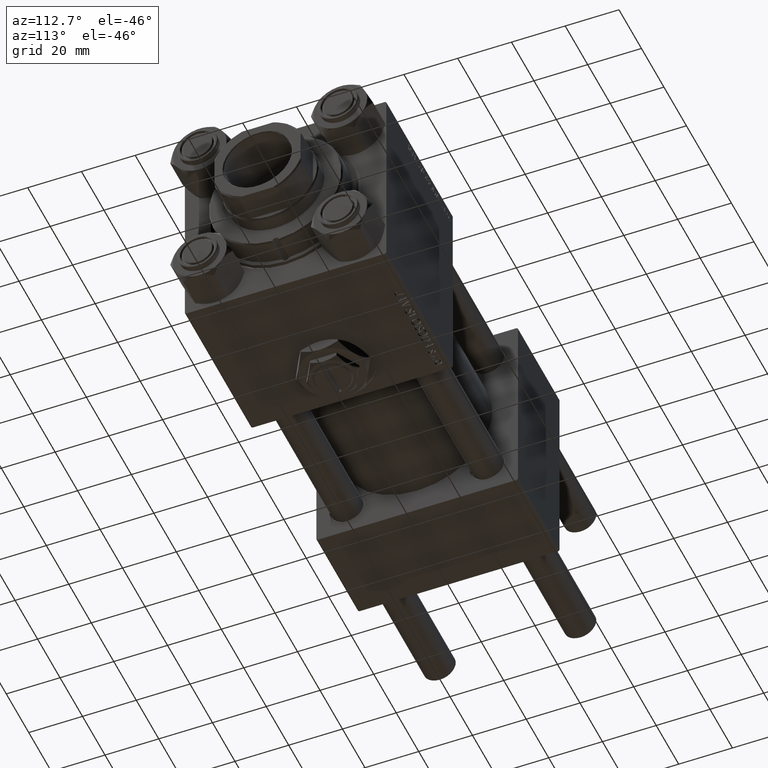
[diagram: clean part render]
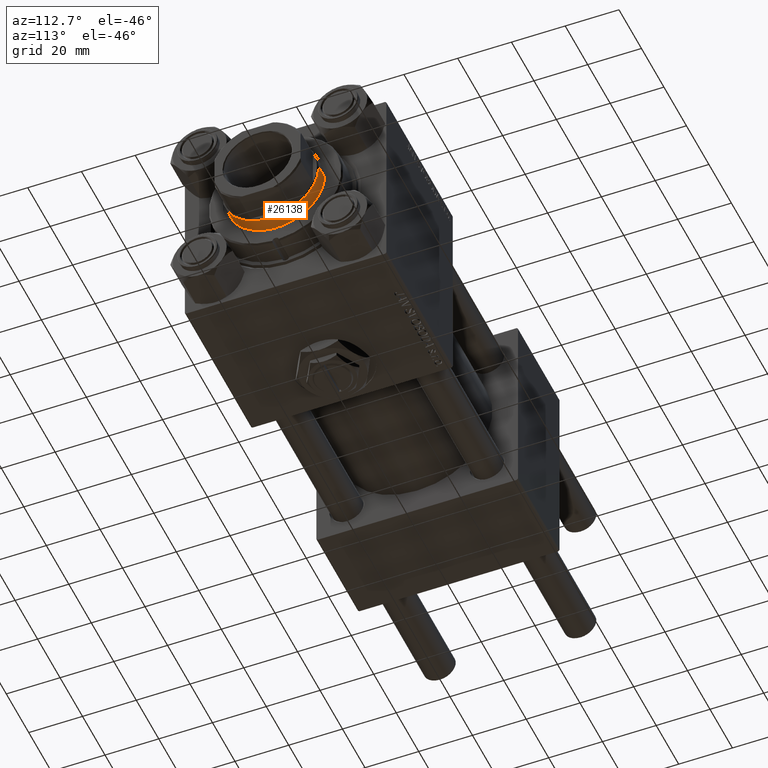
[diagram: same view with one face highlighted and labeled with its STEP entity id]
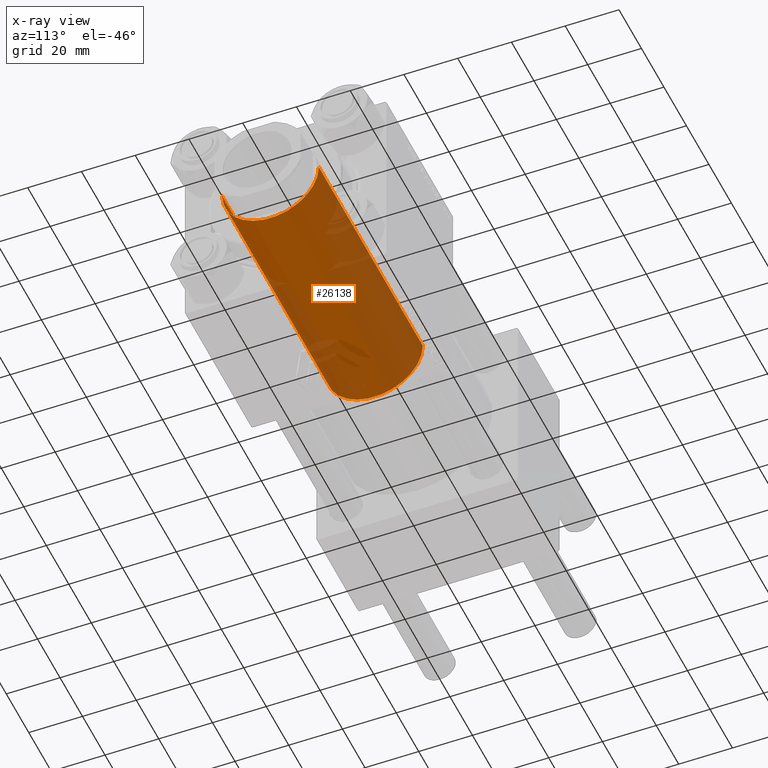
[diagram: x-ray of the same camera — body ghosted, the highlighted face saturated]
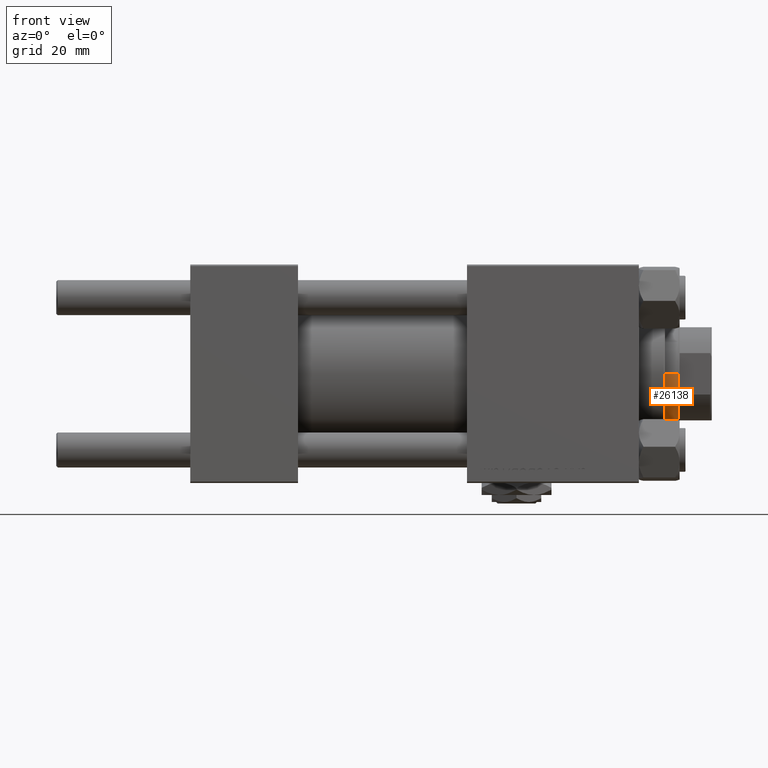
[diagram: same view with one face highlighted and labeled with its STEP entity id]
A machine part, auxiliary view. The second image highlights one B-rep face of the part: STEP entity #26138.
The next image is the same camera in x-ray: the body ghosted, the highlighted face saturated — about 54% of this face is hidden behind the body in this view.
A second angle (front view) of the same face is appended — the face is thin or edge-on in the first view.
In plain terms, the highlighted cylindrical surface (partial cylindrical patch) has radius 18 mm, axis along (-1, 0, 0).
Its self-contained STEP definition (entity closure, byte-faithful):
#2767 = CARTESIAN_POINT ( 'NONE',  ( 0.000000000000000000, 0.000000000000000000, 38.00000000000000000 ) ) ;
#3090 = LINE ( 'NONE', #7007, #33055 ) ;
#3495 = EDGE_LOOP ( 'NONE', ( #11753, #46958, #29587, #3926 ) ) ;
#3859 = DIRECTION ( 'NONE',  ( -1.000000000000000000, 0.000000000000000000, 0.000000000000000000 ) ) ;
#3926 = ORIENTED_EDGE ( 'NONE', *, *, #42815, .F. ) ;
#7007 = CARTESIAN_POINT ( 'NONE',  ( 18.00000000000000000, 2.204364238465235033E-15, 131.0000000000000000 ) ) ;
#7660 = DIRECTION ( 'NONE',  ( 1.000000000000000000, 0.000000000000000000, 0.000000000000000000 ) ) ;
#9568 = EDGE_CURVE ( 'NONE', #23638, #47143, #39350, .T. ) ;
#11753 = ORIENTED_EDGE ( 'NONE', *, *, #9568, .T. ) ;
#12721 = VECTOR ( 'NONE', #44321, 1000.000000000000000 ) ;
#16649 = EDGE_CURVE ( 'NONE', #29852, #22071, #51281, .T. ) ;
#18704 = DIRECTION ( 'NONE',  ( 0.000000000000000000, 0.000000000000000000, 1.000000000000000000 ) ) ;
#19020 = DIRECTION ( 'NONE',  ( -0.000000000000000000, -0.000000000000000000, -1.000000000000000000 ) ) ;
#19262 = CARTESIAN_POINT ( 'NONE',  ( 0.000000000000000000, 0.000000000000000000, 131.0000000000000000 ) ) ;
#20675 = CARTESIAN_POINT ( 'NONE',  ( 18.00000000000000000, 2.204364238465235033E-15, 130.5000000000000568 ) ) ;
#22071 = VERTEX_POINT ( 'NONE', #33748 ) ;
#22254 = LINE ( 'NONE', #47252, #12721 ) ;
#22475 = EDGE_CURVE ( 'NONE', #47143, #29852, #3090, .T. ) ;
#23192 = FACE_OUTER_BOUND ( 'NONE', #3495, .T. ) ;
#23638 = VERTEX_POINT ( 'NONE', #45222 ) ;
#26138 = ADVANCED_FACE ( 'NONE', ( #23192 ), #31809, .T. ) ;
#26865 = AXIS2_PLACEMENT_3D ( 'NONE', #27266, #39013, #7660 ) ;
#27266 = CARTESIAN_POINT ( 'NONE',  ( 0.000000000000000000, 0.000000000000000000, 130.5000000000000568 ) ) ;
#28129 = AXIS2_PLACEMENT_3D ( 'NONE', #19262, #35213, #3859 ) ;
#28772 = AXIS2_PLACEMENT_3D ( 'NONE', #2767, #18704, #50827 ) ;
#29587 = ORIENTED_EDGE ( 'NONE', *, *, #16649, .T. ) ;
#29852 = VERTEX_POINT ( 'NONE', #34547 ) ;
#31809 = CYLINDRICAL_SURFACE ( 'NONE', #28129, 18.00000000000000000 ) ;
#33055 = VECTOR ( 'NONE', #19020, 1000.000000000000000 ) ;
#33748 = CARTESIAN_POINT ( 'NONE',  ( -18.00000000000000000, 0.000000000000000000, 38.00000000000000000 ) ) ;
#34547 = CARTESIAN_POINT ( 'NONE',  ( 18.00000000000000000, 2.204364238465235033E-15, 38.00000000000000000 ) ) ;
#35213 = DIRECTION ( 'NONE',  ( -0.000000000000000000, -0.000000000000000000, -1.000000000000000000 ) ) ;
#39013 = DIRECTION ( 'NONE',  ( 0.000000000000000000, 0.000000000000000000, -1.000000000000000000 ) ) ;
#39350 = CIRCLE ( 'NONE', #26865, 18.00000000000000000 ) ;
#42815 = EDGE_CURVE ( 'NONE', #23638, #22071, #22254, .T. ) ;
#44321 = DIRECTION ( 'NONE',  ( -0.000000000000000000, -0.000000000000000000, -1.000000000000000000 ) ) ;
#45222 = CARTESIAN_POINT ( 'NONE',  ( -18.00000000000000000, 0.000000000000000000, 130.5000000000000568 ) ) ;
#46958 = ORIENTED_EDGE ( 'NONE', *, *, #22475, .T. ) ;
#47143 = VERTEX_POINT ( 'NONE', #20675 ) ;
#47252 = CARTESIAN_POINT ( 'NONE',  ( -18.00000000000000000, 0.000000000000000000, 131.0000000000000000 ) ) ;
#50827 = DIRECTION ( 'NONE',  ( 1.000000000000000000, 0.000000000000000000, 0.000000000000000000 ) ) ;
#51281 = CIRCLE ( 'NONE', #28772, 18.00000000000000000 ) ;